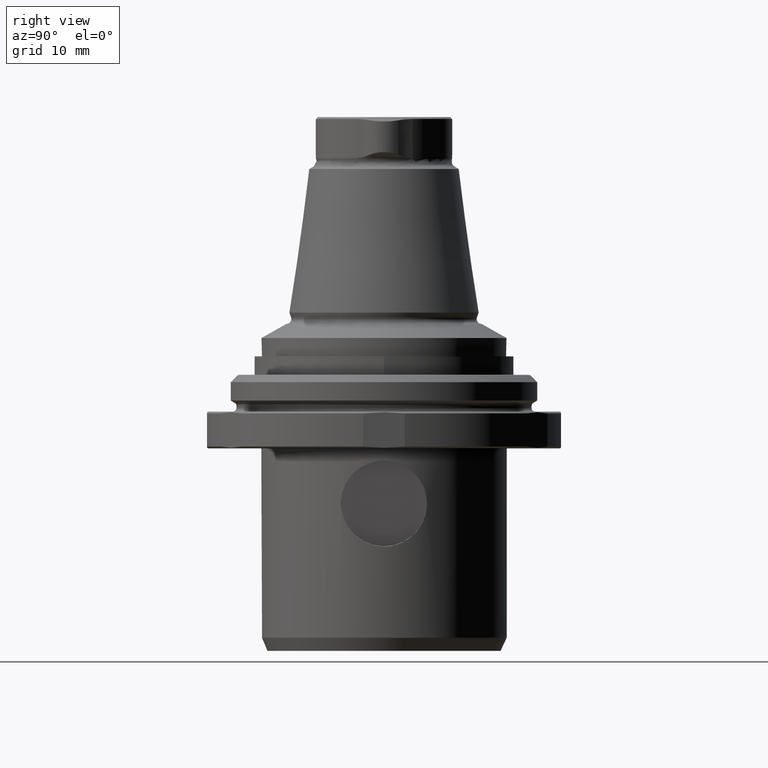
[diagram: clean part render]
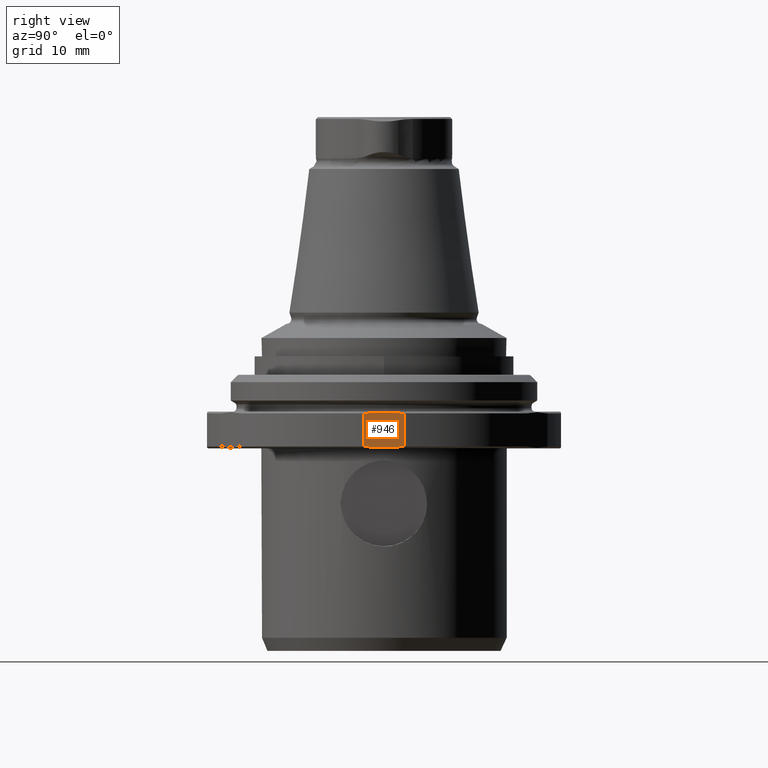
[diagram: same view with one face highlighted and labeled with its STEP entity id]
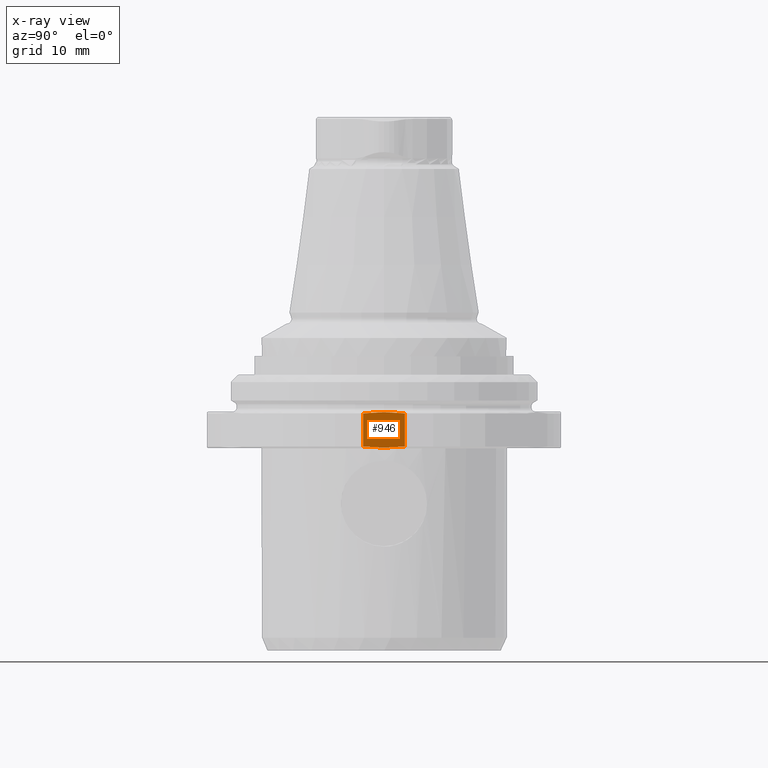
[diagram: x-ray of the same camera — body ghosted, the highlighted face saturated]
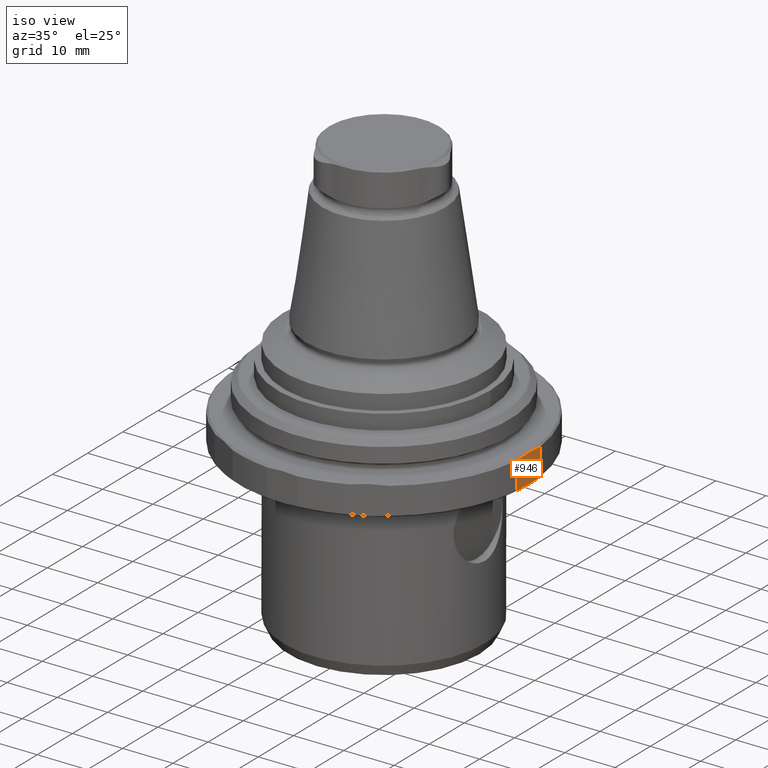
[diagram: same view with one face highlighted and labeled with its STEP entity id]
A machine part, right view. The second image highlights one B-rep face of the part: STEP entity #946.
The next image is the same camera in x-ray: the body ghosted, the highlighted face saturated — about 0% of this face is hidden behind the body in this view.
A second angle (iso view) of the same face is appended — the face is thin or edge-on in the first view.
In plain terms, the highlighted planar face has unit normal (-1, 0, 0).
Its self-contained STEP definition (entity closure, byte-faithful):
#71=B_SPLINE_CURVE_WITH_KNOTS('',3,(#1648,#1649,#1650,#1651),
 .UNSPECIFIED.,.F.,.F.,(4,4),(0.0123361877565685,0.019109524321464),
 .UNSPECIFIED.);
#78=B_SPLINE_CURVE_WITH_KNOTS('',3,(#1717,#1718,#1719,#1720),
 .UNSPECIFIED.,.F.,.F.,(4,4),(0.0123361877565685,0.019109524321464),
 .UNSPECIFIED.);
#105=LINE('',#1715,#133);
#106=LINE('',#1722,#134);
#133=VECTOR('',#1307,1000.);
#134=VECTOR('',#1310,1000.);
#148=PLANE('',#1069);
#346=ORIENTED_EDGE('',*,*,#509,.F.);
#347=ORIENTED_EDGE('',*,*,#510,.F.);
#348=ORIENTED_EDGE('',*,*,#511,.F.);
#349=ORIENTED_EDGE('',*,*,#486,.F.);
#486=EDGE_CURVE('',#593,#594,#71,.F.);
#509=EDGE_CURVE('',#606,#593,#105,.F.);
#510=EDGE_CURVE('',#607,#606,#78,.T.);
#511=EDGE_CURVE('',#594,#607,#106,.T.);
#593=VERTEX_POINT('',#1647);
#594=VERTEX_POINT('',#1652);
#606=VERTEX_POINT('',#1714);
#607=VERTEX_POINT('',#1721);
#746=EDGE_LOOP('',(#346,#347,#348,#349));
#842=FACE_BOUND('',#746,.T.);
#946=ADVANCED_FACE('',(#842),#148,.F.);
#1069=AXIS2_PLACEMENT_3D('',#1716,#1308,#1309);
#1307=DIRECTION('',(-5.47430718319515E-16,-4.76420379815137E-18,-1.));
#1308=DIRECTION('',(-1.,1.03839867523049E-15,5.47430716006892E-16));
#1309=DIRECTION('',(-5.47430718319515E-16,-4.76420379815137E-18,-1.));
#1310=DIRECTION('',(-5.47430718319515E-16,-4.76420379815137E-18,-1.));
#1647=CARTESIAN_POINT('',(28.7999999999999,-3.40000000000011,-1.29592921435214));
#1648=CARTESIAN_POINT('',(28.7999999999999,3.39999999999985,-1.29592921435214));
#1649=CARTESIAN_POINT('',(28.7999999999999,1.12809259567331,-1.02956765660351));
#1650=CARTESIAN_POINT('',(28.7999999999999,-1.13854994842466,-1.03079369106398));
#1651=CARTESIAN_POINT('',(28.7999999999999,-3.4000000000001,-1.29592921435214));
#1652=CARTESIAN_POINT('',(28.7999999999999,3.39999999999985,-1.29592921435214));
#1714=CARTESIAN_POINT('',(28.7999999999999,-3.40000000000011,-6.69592921435213));
#1715=CARTESIAN_POINT('',(28.7999999999999,-3.40000000000011,-0.995929214352135));
#1716=CARTESIAN_POINT('',(28.7999999999999,-1.28084709617853E-13,-3.99592921435213));
#1717=CARTESIAN_POINT('',(28.7999999999999,3.39999999999985,-6.69592921435213));
#1718=CARTESIAN_POINT('',(28.7999999999999,1.12809259567332,-6.96229077210076));
#1719=CARTESIAN_POINT('',(28.7999999999999,-1.13854994842466,-6.96106473764029));
#1720=CARTESIAN_POINT('',(28.7999999999999,-3.4000000000001,-6.69592921435214));
#1721=CARTESIAN_POINT('',(28.7999999999999,3.39999999999985,-6.69592921435213));
#1722=CARTESIAN_POINT('',(28.7999999999999,3.39999999999985,-0.995929214352135));